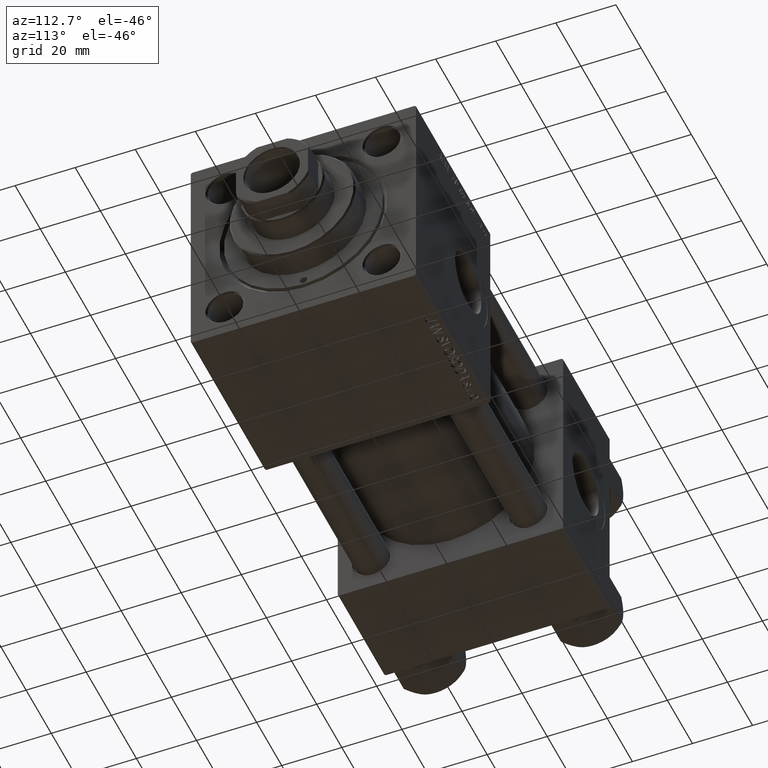
[diagram: clean part render]
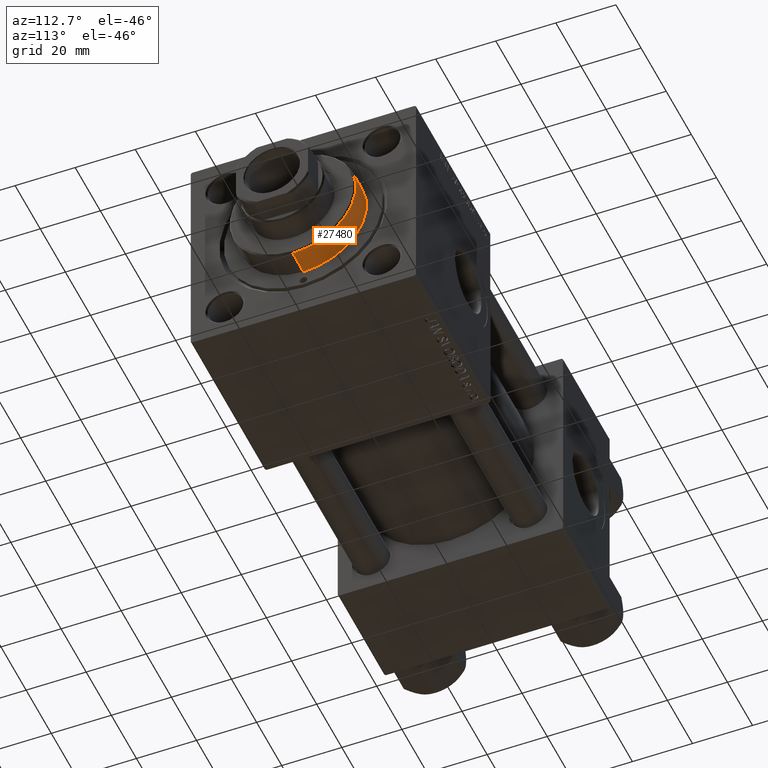
[diagram: same view with one face highlighted and labeled with its STEP entity id]
A machine part, auxiliary view. The second image highlights one B-rep face of the part: STEP entity #27480.
In plain terms, the highlighted cylindrical surface (partial cylindrical patch) has radius 21 mm, axis along (-1, -0, -0).
Its self-contained STEP definition (entity closure, byte-faithful):
#2257 = FACE_OUTER_BOUND ( 'NONE', #29092, .T. ) ;
#2782 = DIRECTION ( 'NONE',  ( -0.000000000000000000, -0.000000000000000000, -1.000000000000000000 ) ) ;
#3326 = AXIS2_PLACEMENT_3D ( 'NONE', #41967, #2782, #9868 ) ;
#3342 = VECTOR ( 'NONE', #45088, 1000.000000000000000 ) ;
#5363 = CARTESIAN_POINT ( 'NONE',  ( 21.00000000000000000, 2.571758278209441661E-15, 37.69999999999999574 ) ) ;
#7751 = EDGE_CURVE ( 'NONE', #50562, #36580, #13440, .T. ) ;
#8584 = CARTESIAN_POINT ( 'NONE',  ( 21.00000000000000000, 2.571758278209441661E-15, 37.19999999999999574 ) ) ;
#9555 = ORIENTED_EDGE ( 'NONE', *, *, #50570, .T. ) ;
#9868 = DIRECTION ( 'NONE',  ( -1.000000000000000000, 0.000000000000000000, 0.000000000000000000 ) ) ;
#10914 = EDGE_CURVE ( 'NONE', #50562, #19185, #15015, .T. ) ;
#11239 = DIRECTION ( 'NONE',  ( 0.000000000000000000, 0.000000000000000000, 1.000000000000000000 ) ) ;
#12922 = CARTESIAN_POINT ( 'NONE',  ( -21.00000000000000000, 0.000000000000000000, 37.69999999999999574 ) ) ;
#13080 = ORIENTED_EDGE ( 'NONE', *, *, #10914, .T. ) ;
#13440 = LINE ( 'NONE', #12922, #28452 ) ;
#13521 = LINE ( 'NONE', #5363, #3342 ) ;
#14568 = ORIENTED_EDGE ( 'NONE', *, *, #7751, .F. ) ;
#14607 = EDGE_CURVE ( 'NONE', #35734, #36580, #50377, .T. ) ;
#15015 = CIRCLE ( 'NONE', #33478, 21.00000000000000000 ) ;
#16945 = CARTESIAN_POINT ( 'NONE',  ( -21.00000000000000000, 0.000000000000000000, 37.19999999999999574 ) ) ;
#19185 = VERTEX_POINT ( 'NONE', #8584 ) ;
#25192 = CARTESIAN_POINT ( 'NONE',  ( 21.00000000000000000, 2.571758278209441661E-15, 28.69999999999999929 ) ) ;
#25922 = CYLINDRICAL_SURFACE ( 'NONE', #3326, 21.00000000000000000 ) ;
#27291 = DIRECTION ( 'NONE',  ( 1.000000000000000000, 0.000000000000000000, 0.000000000000000000 ) ) ;
#27480 = ADVANCED_FACE ( 'NONE', ( #2257 ), #25922, .T. ) ;
#28063 = CARTESIAN_POINT ( 'NONE',  ( 0.000000000000000000, 0.000000000000000000, 28.69999999999999929 ) ) ;
#28452 = VECTOR ( 'NONE', #32923, 1000.000000000000000 ) ;
#29076 = ORIENTED_EDGE ( 'NONE', *, *, #14607, .T. ) ;
#29092 = EDGE_LOOP ( 'NONE', ( #13080, #9555, #29076, #14568 ) ) ;
#32923 = DIRECTION ( 'NONE',  ( -0.000000000000000000, -0.000000000000000000, -1.000000000000000000 ) ) ;
#33478 = AXIS2_PLACEMENT_3D ( 'NONE', #51640, #43740, #39794 ) ;
#35734 = VERTEX_POINT ( 'NONE', #25192 ) ;
#36580 = VERTEX_POINT ( 'NONE', #43318 ) ;
#39794 = DIRECTION ( 'NONE',  ( 1.000000000000000000, 0.000000000000000000, 0.000000000000000000 ) ) ;
#41967 = CARTESIAN_POINT ( 'NONE',  ( 0.000000000000000000, 0.000000000000000000, 37.69999999999999574 ) ) ;
#43318 = CARTESIAN_POINT ( 'NONE',  ( -21.00000000000000000, 0.000000000000000000, 28.69999999999999929 ) ) ;
#43740 = DIRECTION ( 'NONE',  ( 0.000000000000000000, 0.000000000000000000, -1.000000000000000000 ) ) ;
#45088 = DIRECTION ( 'NONE',  ( -0.000000000000000000, -0.000000000000000000, -1.000000000000000000 ) ) ;
#50377 = CIRCLE ( 'NONE', #51264, 21.00000000000000000 ) ;
#50562 = VERTEX_POINT ( 'NONE', #16945 ) ;
#50570 = EDGE_CURVE ( 'NONE', #19185, #35734, #13521, .T. ) ;
#51264 = AXIS2_PLACEMENT_3D ( 'NONE', #28063, #11239, #27291 ) ;
#51640 = CARTESIAN_POINT ( 'NONE',  ( 0.000000000000000000, 0.000000000000000000, 37.19999999999999574 ) ) ;